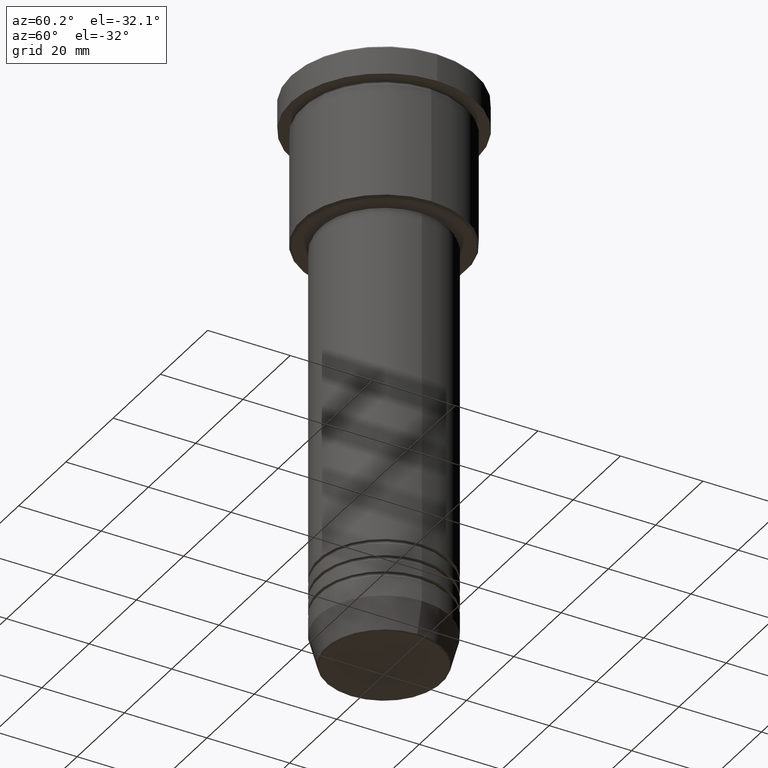
[diagram: clean part render]
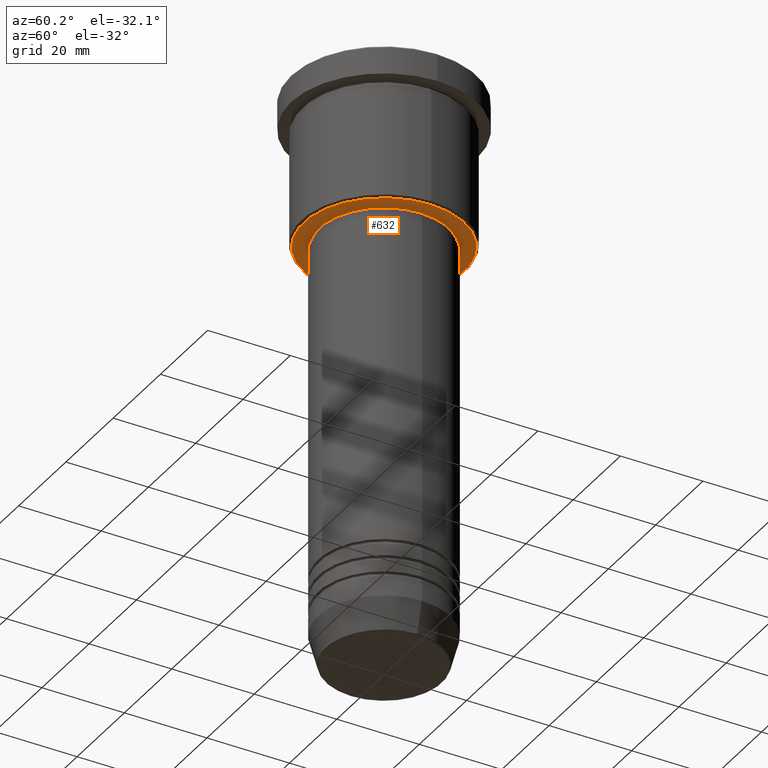
[diagram: same view with one face highlighted and labeled with its STEP entity id]
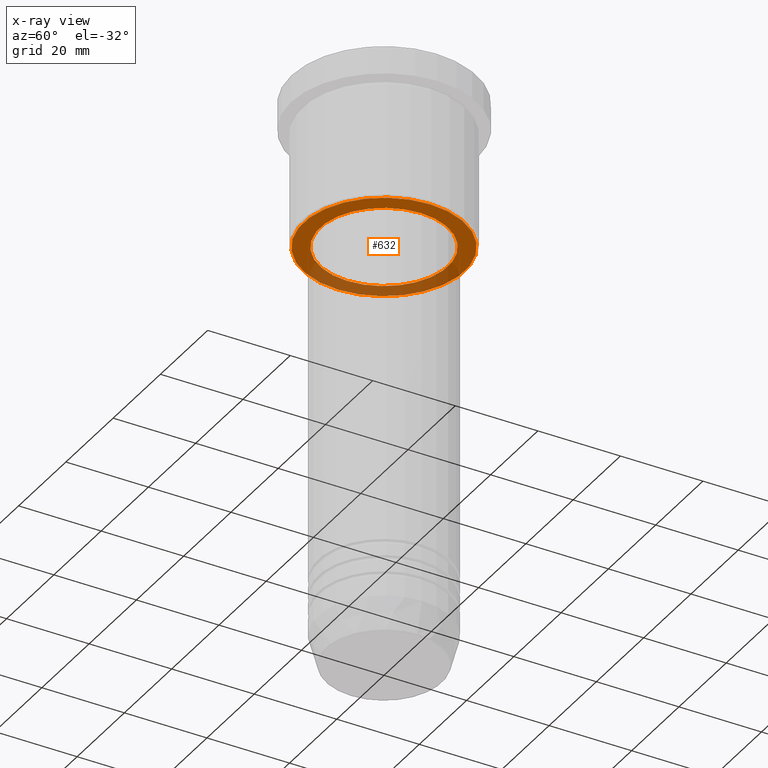
[diagram: x-ray of the same camera — body ghosted, the highlighted face saturated]
A machine part, auxiliary view. The second image highlights one B-rep face of the part: STEP entity #632.
The next image is the same camera in x-ray: the body ghosted, the highlighted face saturated — about 34% of this face is hidden behind the body in this view.
In plain terms, the highlighted planar face has unit normal (0, 0, -1).
Its self-contained STEP definition (entity closure, byte-faithful):
#64 = DIRECTION ( 'NONE',  ( 0.000000000000000000, 0.000000000000000000, -1.000000000000000000 ) ) ;
#90 = ORIENTED_EDGE ( 'NONE', *, *, #826, .T. ) ;
#118 = CARTESIAN_POINT ( 'NONE',  ( 19.49999999999997513, 0.000000000000000000, -36.00000000000000711 ) ) ;
#130 = CIRCLE ( 'NONE', #909, 19.49999999999997513 ) ;
#197 = AXIS2_PLACEMENT_3D ( 'NONE', #1001, #1004, #655 ) ;
#230 = AXIS2_PLACEMENT_3D ( 'NONE', #947, #320, #307 ) ;
#266 = CIRCLE ( 'NONE', #230, 15.50000000000000000 ) ;
#291 = EDGE_LOOP ( 'NONE', ( #920, #648 ) ) ;
#300 = VERTEX_POINT ( 'NONE', #860 ) ;
#307 = DIRECTION ( 'NONE',  ( 1.000000000000000000, 0.000000000000000000, 0.000000000000000000 ) ) ;
#309 = EDGE_CURVE ( 'NONE', #645, #622, #887, .T. ) ;
#320 = DIRECTION ( 'NONE',  ( -0.000000000000000000, -0.000000000000000000, 1.000000000000000000 ) ) ;
#323 = DIRECTION ( 'NONE',  ( -1.000000000000000000, 0.000000000000000000, 0.000000000000000000 ) ) ;
#338 = DIRECTION ( 'NONE',  ( 0.000000000000000000, 0.000000000000000000, -1.000000000000000000 ) ) ;
#418 = CARTESIAN_POINT ( 'NONE',  ( 0.000000000000000000, 0.000000000000000000, -36.00000000000000711 ) ) ;
#433 = AXIS2_PLACEMENT_3D ( 'NONE', #701, #64, #483 ) ;
#455 = AXIS2_PLACEMENT_3D ( 'NONE', #418, #1144, #323 ) ;
#483 = DIRECTION ( 'NONE',  ( -1.000000000000000000, 0.000000000000000000, -0.000000000000000000 ) ) ;
#502 = EDGE_CURVE ( 'NONE', #622, #645, #130, .T. ) ;
#622 = VERTEX_POINT ( 'NONE', #948 ) ;
#629 = ORIENTED_EDGE ( 'NONE', *, *, #1074, .T. ) ;
#632 = ADVANCED_FACE ( 'NONE', ( #1020, #938 ), #635, .T. ) ;
#635 = PLANE ( 'NONE',  #433 ) ;
#645 = VERTEX_POINT ( 'NONE', #118 ) ;
#648 = ORIENTED_EDGE ( 'NONE', *, *, #502, .T. ) ;
#655 = DIRECTION ( 'NONE',  ( 1.000000000000000000, 0.000000000000000000, 0.000000000000000000 ) ) ;
#700 = CIRCLE ( 'NONE', #197, 15.50000000000000000 ) ;
#701 = CARTESIAN_POINT ( 'NONE',  ( 0.000000000000000000, 20.00000000000000355, -36.00000000000000711 ) ) ;
#703 = DIRECTION ( 'NONE',  ( -1.000000000000000000, 0.000000000000000000, 0.000000000000000000 ) ) ;
#789 = VERTEX_POINT ( 'NONE', #1036 ) ;
#826 = EDGE_CURVE ( 'NONE', #789, #300, #700, .T. ) ;
#860 = CARTESIAN_POINT ( 'NONE',  ( 15.50000000000000000, 0.000000000000000000, -36.00000000000001421 ) ) ;
#887 = CIRCLE ( 'NONE', #455, 19.49999999999997513 ) ;
#909 = AXIS2_PLACEMENT_3D ( 'NONE', #1088, #338, #703 ) ;
#920 = ORIENTED_EDGE ( 'NONE', *, *, #309, .T. ) ;
#938 = FACE_BOUND ( 'NONE', #995, .T. ) ;
#947 = CARTESIAN_POINT ( 'NONE',  ( 0.000000000000000000, 0.000000000000000000, -36.00000000000001421 ) ) ;
#948 = CARTESIAN_POINT ( 'NONE',  ( -19.49999999999997513, 2.418677428316021148E-15, -36.00000000000000711 ) ) ;
#995 = EDGE_LOOP ( 'NONE', ( #629, #90 ) ) ;
#1001 = CARTESIAN_POINT ( 'NONE',  ( 0.000000000000000000, 0.000000000000000000, -36.00000000000001421 ) ) ;
#1004 = DIRECTION ( 'NONE',  ( -0.000000000000000000, -0.000000000000000000, 1.000000000000000000 ) ) ;
#1020 = FACE_OUTER_BOUND ( 'NONE', #291, .T. ) ;
#1036 = CARTESIAN_POINT ( 'NONE',  ( -15.50000000000000000, 1.898202538678397557E-15, -36.00000000000001421 ) ) ;
#1074 = EDGE_CURVE ( 'NONE', #300, #789, #266, .T. ) ;
#1088 = CARTESIAN_POINT ( 'NONE',  ( 0.000000000000000000, 0.000000000000000000, -36.00000000000000711 ) ) ;
#1144 = DIRECTION ( 'NONE',  ( 0.000000000000000000, 0.000000000000000000, -1.000000000000000000 ) ) ;